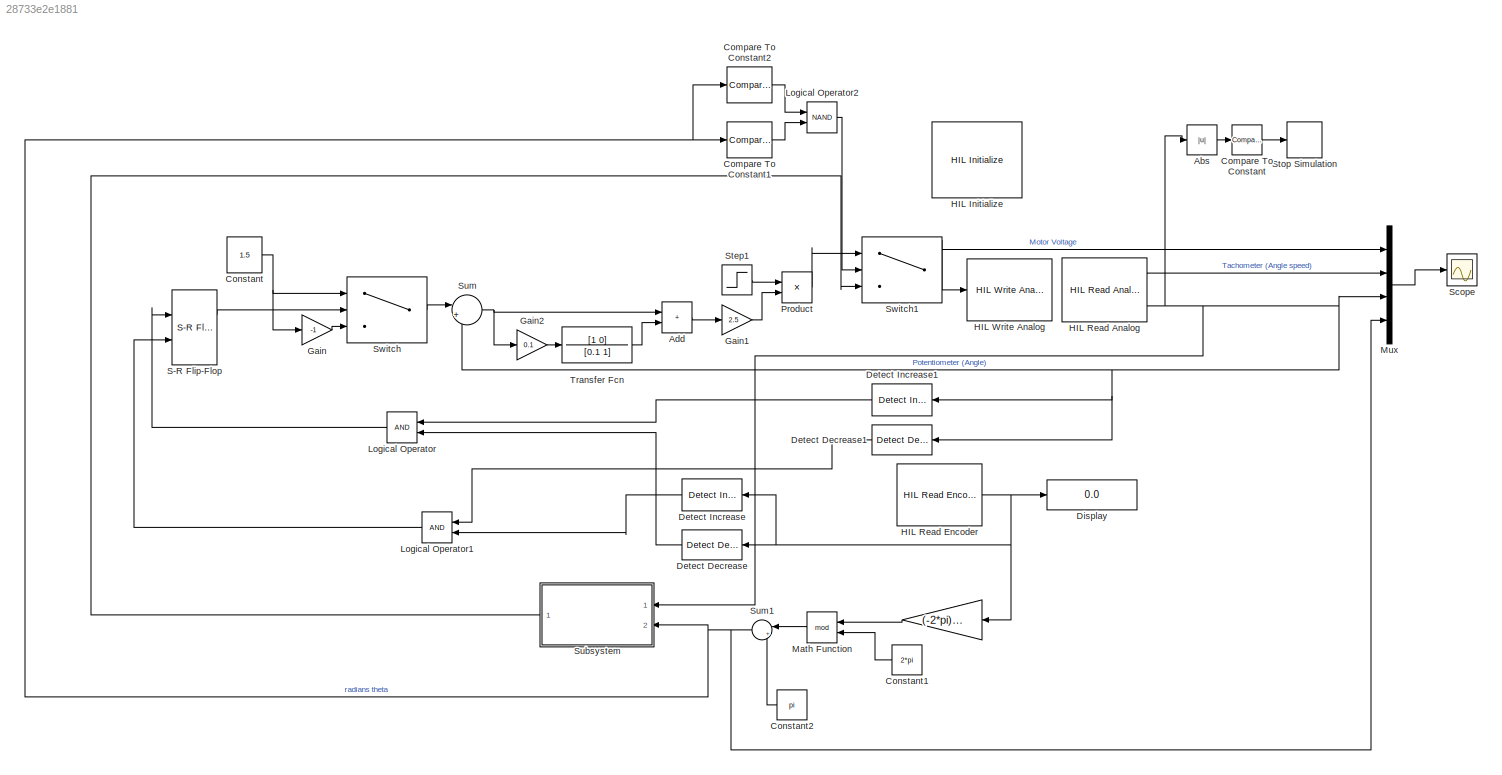
MODEL slx_28733e2e1881
KIND model
CONFIG AbsTol = auto
CONFIG EnableMultiTasking = on
CONFIG FixedStep = 0.001
CONFIG MaxStep = auto
CONFIG MinStep = auto
CONFIG RelTol = 1e-3
CONFIG SampleTimeConstraint = Unconstrained
CONFIG SolverName = ode5
CONFIG StartTime = 0.0
CONFIG StopTime = 100
BLOCK [Gain]   
  Gain = (-2*pi)/4096
  NameLocation = top
BLOCK [Abs] Abs
  SaturateOnIntegerOverflow = off
BLOCK [Sum] Add
  IconShape = rectangular
  Ports = [2, 1]
BLOCK [Reference] Compare To Constant  REF=simulink/Logic and Bit
Operations/Compare
To Constant
  Ports = [1, 1]
  SourceBlock = simulink/Logic and Bit\nOperations/Compare\nTo Constant
  SourceProductBaseCode = SL
  SourceType = Compare To Constant
BLOCK [Reference] Compare To Constant1  REF=simulink/Logic and Bit
Operations/Compare
To Constant
  Ports = [1, 1]
  SourceBlock = simulink/Logic and Bit\nOperations/Compare\nTo Constant
  SourceProductBaseCode = SL
  SourceType = Compare To Constant
BLOCK [Reference] Compare To Constant2  REF=simulink/Logic and Bit
Operations/Compare
To Constant
  Ports = [1, 1]
  SourceBlock = simulink/Logic and Bit\nOperations/Compare\nTo Constant
  SourceProductBaseCode = SL
  SourceType = Compare To Constant
BLOCK [Constant] Constant
  Value = 1.5
BLOCK [Constant] Constant1
  NameLocation = top
  Value = 2*pi
BLOCK [Constant] Constant2
  NameLocation = top
  Value = pi
BLOCK [Reference] Detect Decrease  REF=simulink/Logic and Bit
Operations/Detect
Decrease
  NameLocation = top
  Ports = [1, 1]
  SourceBlock = simulink/Logic and Bit\nOperations/Detect\nDecrease
  SourceProductBaseCode = SL
  SourceType = Detect Decrease
BLOCK [Reference] Detect Decrease1  REF=simulink/Logic and Bit
Operations/Detect
Decrease
  NameLocation = top
  Ports = [1, 1]
  SourceBlock = simulink/Logic and Bit\nOperations/Detect\nDecrease
  SourceProductBaseCode = SL
  SourceType = Detect Decrease
BLOCK [Reference] Detect Increase  REF=simulink/Logic and Bit
Operations/Detect
Increase
  NameLocation = top
  Ports = [1, 1]
  SourceBlock = simulink/Logic and Bit\nOperations/Detect\nIncrease
  SourceProductBaseCode = SL
  SourceType = Detect Increase
BLOCK [Reference] Detect Increase1  REF=simulink/Logic and Bit
Operations/Detect
Increase
  NameLocation = top
  Ports = [1, 1]
  SourceBlock = simulink/Logic and Bit\nOperations/Detect\nIncrease
  SourceProductBaseCode = SL
  SourceType = Detect Increase
BLOCK [Display] Display
  Decimation = 1
  Ports = [1]
BLOCK [Gain] Gain
  Gain = -1
BLOCK [Gain] Gain1
  Gain = 2.5
BLOCK [Gain] Gain2
  Gain = 0.1
BLOCK [Reference] HIL Initialize  REF=quarc_library/Data Acquisition/Generic/Configuration/HIL Initialize
  AttributesFormatString = %<object_name> (%<board_type>-%<board_number>)
  Ports = []
  SourceBlock = quarc_library/Data Acquisition/Generic/Configuration/HIL Initialize
  SourceProductName = QUARC Targets
  SourceType = HIL Initialize
  UserDataPersistent = on
BLOCK [Reference] HIL Read Analog  REF=quarc_library/Data Acquisition/Generic/Immediate I//O/HIL Read Analog
  AttributesFormatString = (%<object_name>)
  Ports = [0, 3]
  SourceBlock = quarc_library/Data Acquisition/Generic/Immediate I//O/HIL Read Analog
  SourceProductName = QUARC Targets
  SourceType = HIL Read Analog
  UserDataPersistent = on
BLOCK [Reference] HIL Read Encoder  REF=quarc_library/Data Acquisition/Generic/Immediate I//O/HIL Read Encoder
  AttributesFormatString = (%<object_name>)
  Ports = [0, 1]
  SourceBlock = quarc_library/Data Acquisition/Generic/Immediate I//O/HIL Read Encoder
  SourceProductName = QUARC Targets
  SourceType = HIL Read Encoder
  UserDataPersistent = on
BLOCK [Reference] HIL Write Analog  REF=quarc_library/Data Acquisition/Generic/Immediate I//O/HIL Write Analog
  AttributesFormatString = (%<object_name>)
  Ports = [1]
  SourceBlock = quarc_library/Data Acquisition/Generic/Immediate I//O/HIL Write Analog
  SourceProductName = QUARC Targets
  SourceType = HIL Write Analog
  UserDataPersistent = on
BLOCK [Logic] Logical Operator
  AllPortsSameDT = off
  NameLocation = top
  OutDataTypeStr = boolean
  Ports = [2, 1]
BLOCK [Logic] Logical Operator1
  AllPortsSameDT = off
  NameLocation = top
  OutDataTypeStr = boolean
  Ports = [2, 1]
BLOCK [Logic] Logical Operator2
  AllPortsSameDT = off
  Operator = NAND
  OutDataTypeStr = boolean
  Ports = [2, 1]
BLOCK [Math] Math Function
  NameLocation = top
  Operator = mod
  Ports = [2, 1]
BLOCK [Mux] Mux
  DisplayOption = bar
  Ports = [4, 1]
BLOCK [Product] Product
  Ports = [2, 1]
BLOCK [Reference] S-R Flip-Flop  REF=simulink_extras/Flip Flops/S-R
Flip-Flop
  Ports = [2, 2]
  SourceBlock = simulink_extras/Flip Flops/S-R\nFlip-Flop
  SourceProductBaseCode = SL
  SourceType = SRFlipFlop
BLOCK [Scope] Scope
  Floating = off
  NumInputPorts = 1
  Ports = [1]
  ScopeSpecificationString = Simulink.scopes.TimeScopeBlockCfg('CurrentConfiguration', extmgr.ConfigurationSet(extmgr.Configuration('Core','General UI',true),extmgr.Configuration('Core','Source UI',true),extmgr.Configuration('Sources','WiredSimulink',true,'DataLogging',true,'DataLoggingSaveFormat','StructureWithTime','SampleTime','0.01'),extmgr.Configuration('Visuals','Time Domain',true,'SerializedDisplays',{struct('MinYLimRe...<+1758ch>
BLOCK [Step] Step1
  After = 0
  Before = 1
  SampleTime = 0
  Time = 28
BLOCK [Stop] Stop Simulation
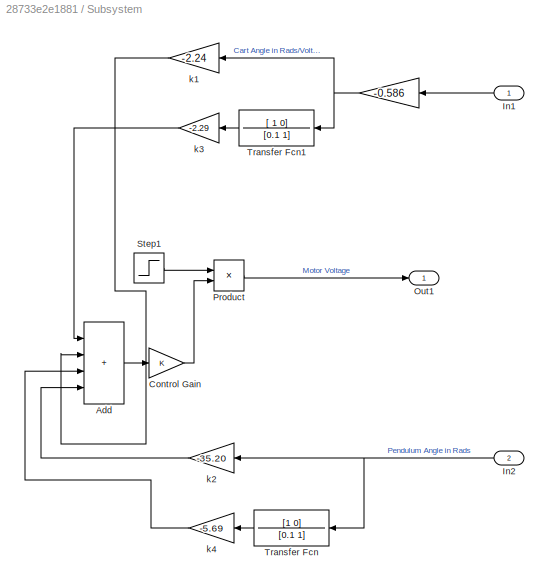
BLOCK [SubSystem] Subsystem
  NameLocation = top
  Ports = [2, 1]
  RequestExecContextInheritance = off
BLOCK [Gain] Subsystem/ 
  Gain = -0.586
  NameLocation = top
BLOCK [Sum] Subsystem/Add
  IconShape = rectangular
  Inputs = ++++
  Ports = [4, 1]
BLOCK [Gain] Subsystem/Control Gain
BLOCK [Inport] Subsystem/In1
  NameLocation = top
BLOCK [Inport] Subsystem/In2
  NameLocation = top
  Port = 2
BLOCK [Outport] Subsystem/Out1
BLOCK [Product] Subsystem/Product
  Ports = [2, 1]
BLOCK [Step] Subsystem/Step1
  After = 0
  Before = 1
  SampleTime = 0
  Time = 29
BLOCK [TransferFcn] Subsystem/Transfer Fcn
  Denominator = [0.1 1]
  NameLocation = top
  Numerator = [1 0]
BLOCK [TransferFcn] Subsystem/Transfer Fcn1
  Denominator = [0.1 1]
  NameLocation = top
  Numerator = [ 1 0]
BLOCK [Gain] Subsystem/k1
  Gain = -2.24
  NameLocation = top
BLOCK [Gain] Subsystem/k2
  Gain = -35.20
  NameLocation = top
BLOCK [Gain] Subsystem/k3
  Gain = -2.29
  NameLocation = top
BLOCK [Gain] Subsystem/k4
  Gain = -5.69
  NameLocation = top
BLOCK [Sum] Sum
  Inputs = |+-
  Ports = [2, 1]
BLOCK [Sum] Sum1
  Inputs = |+-
  NameLocation = top
  Ports = [2, 1]
BLOCK [Switch] Switch
  InputSameDT = off
  SaturateOnIntegerOverflow = off
  Threshold = 1
BLOCK [Switch] Switch1
  InputSameDT = off
  SaturateOnIntegerOverflow = off
  Threshold = 1
BLOCK [TransferFcn] Transfer Fcn
  Denominator = [0.1 1]
  Numerator = [1 0]
LINE   :1 -> Math Function:1
LINE Abs:1 -> Compare To Constant:1
LINE Add:1 -> Gain1:1
LINE Compare To Constant1:1 -> Logical Operator2:2
LINE Compare To Constant2:1 -> Logical Operator2:1
LINE Compare To Constant:1 -> Stop Simulation:1
LINE Constant1:1 -> Math Function:2
LINE Constant2:1 -> Sum1:2
NET Constant:1 -> Gain:1, Switch:1
LINE Detect Decrease1:1 -> Logical Operator1:1
LINE Detect Decrease:1 -> Logical Operator:2
LINE Detect Increase1:1 -> Logical Operator:1
LINE Detect Increase:1 -> Logical Operator1:2
LINE Gain1:1 -> Product:2
LINE Gain2:1 -> Transfer Fcn:1
LINE Gain:1 -> Switch:3
LINE HIL Read Analog:1 -> Mux:2
NET HIL Read Analog:3 -> Abs:1, Detect Decrease1:1, Detect Increase1:1, Mux:3, Subsystem:1, Sum:2
NET HIL Read Encoder:1 ->   :1, Detect Decrease:1, Detect Increase:1, Display:1
LINE Logical Operator1:1 -> S-R Flip-Flop:2
LINE Logical Operator2:1 -> Switch1:2
LINE Logical Operator:1 -> S-R Flip-Flop:1
LINE Math Function:1 -> Sum1:1
LINE Mux:1 -> Scope:1
LINE Product:1 -> Switch1:1
LINE S-R Flip-Flop:1 -> Switch:2
LINE Step1:1 -> Product:1
NET Subsystem/ :1 -> Subsystem/Transfer Fcn1:1, Subsystem/k1:1
LINE Subsystem/Add:1 -> Subsystem/Control Gain:1
LINE Subsystem/Control Gain:1 -> Subsystem/Product:2
LINE Subsystem/In1:1 -> Subsystem/ :1
NET Subsystem/In2:1 -> Subsystem/Transfer Fcn:1, Subsystem/k2:1
LINE Subsystem/Product:1 -> Subsystem/Out1:1
LINE Subsystem/Step1:1 -> Subsystem/Product:1
LINE Subsystem/Transfer Fcn1:1 -> Subsystem/k3:1
LINE Subsystem/Transfer Fcn:1 -> Subsystem/k4:1
LINE Subsystem/k1:1 -> Subsystem/Add:2
LINE Subsystem/k2:1 -> Subsystem/Add:4
LINE Subsystem/k3:1 -> Subsystem/Add:1
LINE Subsystem/k4:1 -> Subsystem/Add:3
LINE Subsystem:1 -> Switch1:3
NET Sum1:1 -> Compare To Constant1:1, Compare To Constant2:1, Mux:4, Subsystem:2
NET Sum:1 -> Add:1, Gain2:1
NET Switch1:1 -> HIL Write Analog:1, Mux:1
LINE Switch:1 -> Sum:1
LINE Transfer Fcn:1 -> Add:2
note: NET lines group one-source signal fan-out (src -> all destinations, sorted); 1:1 wires keep LINE
